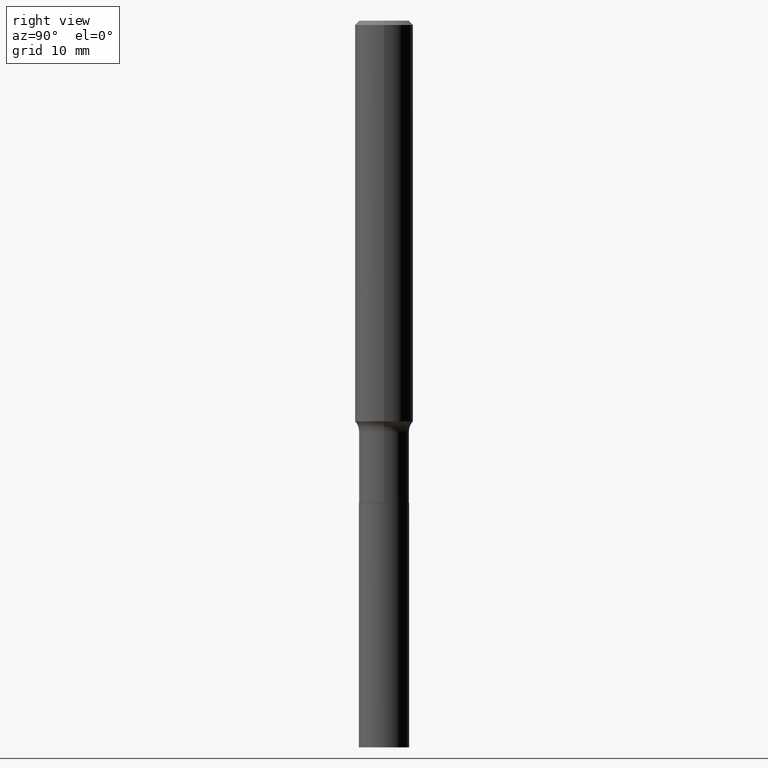
[diagram: clean part render]
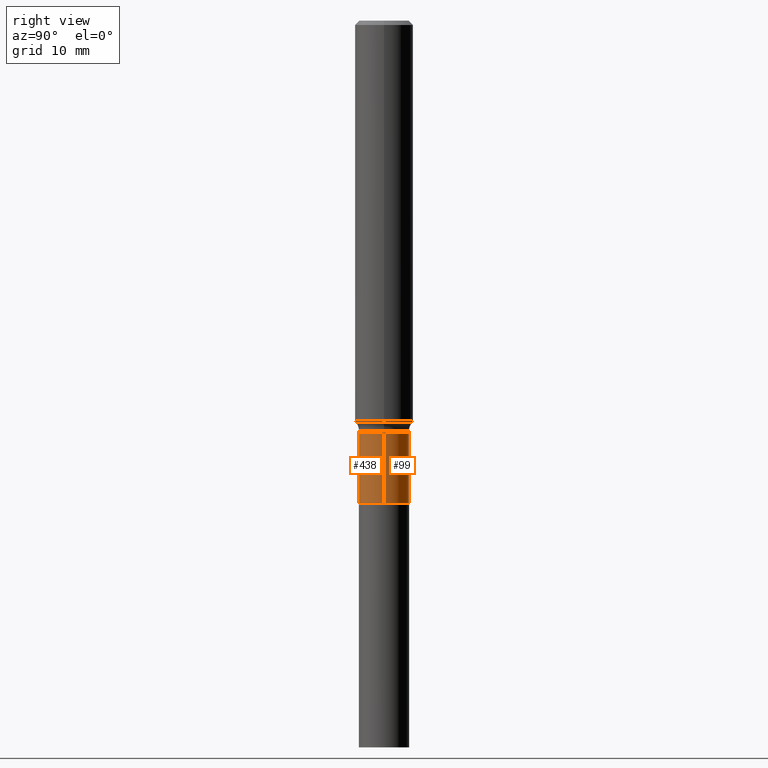
[diagram: same view with one multi-face feature highlighted, each face labeled with its STEP entity id]
A machine part, right view. The highlighted faces form ONE feature: a constant-radius fillet chain: 2 tangent blend faces with common blend radius 3.4544 mm. The faces share edges in the B-rep.
Their STEP definitions:
[1] entity #99 (Cylinder):
#8 = VERTEX_POINT ( 'NONE', #382 ) ;
#17 = CIRCLE ( 'NONE', #357, 0.1360000000000000098 ) ;
#23 = DIRECTION ( 'NONE',  ( -2.445468806185136877E-29, 3.491481338843145188E-15, 1.000000000000000000 ) ) ;
#57 = CARTESIAN_POINT ( 'NONE',  ( 0.000000000000000000, 0.000000000000000000, 0.000000000000000000 ) ) ;
#63 = CARTESIAN_POINT ( 'NONE',  ( 0.1359999999999999543, -9.496829241653320596E-16, 6.631600415082470604E-30 ) ) ;
#80 = EDGE_CURVE ( 'NONE', #285, #210, #456, .T. ) ;
#99 = ADVANCED_FACE ( 'NONE', ( #314 ), #454, .T. ) ;
#106 = EDGE_LOOP ( 'NONE', ( #180, #230, #331, #375 ) ) ;
#130 = DIRECTION ( 'NONE',  ( -2.445468806185136597E-29, 3.491481338843145583E-15, 1.000000000000000000 ) ) ;
#144 = EDGE_CURVE ( 'NONE', #210, #8, #258, .T. ) ;
#160 = AXIS2_PLACEMENT_3D ( 'NONE', #57, #240, #203 ) ;
#166 = CARTESIAN_POINT ( 'NONE',  ( 5.441657187523166048E-29, -7.769244275193768716E-15, -2.225200000000000511 ) ) ;
#180 = ORIENTED_EDGE ( 'NONE', *, *, #212, .T. ) ;
#182 = CARTESIAN_POINT ( 'NONE',  ( -0.1360000000000000098, -7.479031515827007153E-15, -2.612499999999999378 ) ) ;
#203 = DIRECTION ( 'NONE',  ( 1.000000000000000000, -6.982962677686267499E-15, 4.876176775795935793E-29 ) ) ;
#205 = VECTOR ( 'NONE', #23, 39.37007874015748143 ) ;
#208 = DIRECTION ( 'NONE',  ( -2.445468806185136877E-29, 3.491481338843145188E-15, 1.000000000000000000 ) ) ;
#210 = VERTEX_POINT ( 'NONE', #270 ) ;
#212 = EDGE_CURVE ( 'NONE', #285, #261, #17, .T. ) ;
#230 = ORIENTED_EDGE ( 'NONE', *, *, #252, .T. ) ;
#232 = CARTESIAN_POINT ( 'NONE',  ( 6.388787256158668014E-29, -9.121494997727716656E-15, -2.612499999999999378 ) ) ;
#236 = AXIS2_PLACEMENT_3D ( 'NONE', #166, #130, #279 ) ;
#240 = DIRECTION ( 'NONE',  ( -2.445468806185136597E-29, 3.491481338843145583E-15, 1.000000000000000000 ) ) ;
#241 = CARTESIAN_POINT ( 'NONE',  ( -0.1359999999999999543, 9.663381206337359278E-16, -6.689751722746669307E-30 ) ) ;
#252 = EDGE_CURVE ( 'NONE', #261, #8, #351, .T. ) ;
#258 = CIRCLE ( 'NONE', #236, 0.1359999999999999543 ) ;
#261 = VERTEX_POINT ( 'NONE', #182 ) ;
#270 = CARTESIAN_POINT ( 'NONE',  ( 0.1359999999999999543, -8.718927199359099789E-15, -2.225200000000000511 ) ) ;
#279 = DIRECTION ( 'NONE',  ( 1.000000000000000000, -6.982962677686262766E-15, 0.000000000000000000 ) ) ;
#285 = VERTEX_POINT ( 'NONE', #383 ) ;
#305 = DIRECTION ( 'NONE',  ( -2.445468806185136597E-29, 3.491481338843145583E-15, 1.000000000000000000 ) ) ;
#306 = VECTOR ( 'NONE', #208, 39.37007874015748143 ) ;
#314 = FACE_OUTER_BOUND ( 'NONE', #106, .T. ) ;
#331 = ORIENTED_EDGE ( 'NONE', *, *, #144, .F. ) ;
#351 = LINE ( 'NONE', #241, #205 ) ;
#357 = AXIS2_PLACEMENT_3D ( 'NONE', #232, #305, #386 ) ;
#375 = ORIENTED_EDGE ( 'NONE', *, *, #80, .F. ) ;
#382 = CARTESIAN_POINT ( 'NONE',  ( -0.1359999999999999543, -7.479031515827007153E-15, -2.225200000000000511 ) ) ;
#383 = CARTESIAN_POINT ( 'NONE',  ( 0.1360000000000000098, -1.007117792189304773E-14, -2.612499999999999378 ) ) ;
#386 = DIRECTION ( 'NONE',  ( 1.000000000000000000, -6.982962677686260400E-15, 0.000000000000000000 ) ) ;
#454 = CYLINDRICAL_SURFACE ( 'NONE', #160, 0.1359999999999999543 ) ;
#456 = LINE ( 'NONE', #63, #306 ) ;
[2] entity #438 (Cylinder):
#8 = VERTEX_POINT ( 'NONE', #382 ) ;
#16 = CIRCLE ( 'NONE', #311, 0.1359999999999999543 ) ;
#21 = EDGE_CURVE ( 'NONE', #8, #210, #16, .T. ) ;
#22 = CARTESIAN_POINT ( 'NONE',  ( 5.441657187523166048E-29, -7.769244275193768716E-15, -2.225200000000000511 ) ) ;
#23 = DIRECTION ( 'NONE',  ( -2.445468806185136877E-29, 3.491481338843145188E-15, 1.000000000000000000 ) ) ;
#63 = CARTESIAN_POINT ( 'NONE',  ( 0.1359999999999999543, -9.496829241653320596E-16, 6.631600415082470604E-30 ) ) ;
#80 = EDGE_CURVE ( 'NONE', #285, #210, #456, .T. ) ;
#83 = CIRCLE ( 'NONE', #468, 0.1360000000000000098 ) ;
#87 = DIRECTION ( 'NONE',  ( -2.445468806185136597E-29, 3.491481338843145583E-15, 1.000000000000000000 ) ) ;
#104 = DIRECTION ( 'NONE',  ( 1.000000000000000000, -6.982962677686267499E-15, 4.876176775795935793E-29 ) ) ;
#114 = ORIENTED_EDGE ( 'NONE', *, *, #21, .F. ) ;
#116 = DIRECTION ( 'NONE',  ( 1.000000000000000000, -6.982962677686260400E-15, 0.000000000000000000 ) ) ;
#182 = CARTESIAN_POINT ( 'NONE',  ( -0.1360000000000000098, -7.479031515827007153E-15, -2.612499999999999378 ) ) ;
#195 = DIRECTION ( 'NONE',  ( 1.000000000000000000, -6.982962677686262766E-15, 0.000000000000000000 ) ) ;
#205 = VECTOR ( 'NONE', #23, 39.37007874015748143 ) ;
#208 = DIRECTION ( 'NONE',  ( -2.445468806185136877E-29, 3.491481338843145188E-15, 1.000000000000000000 ) ) ;
#210 = VERTEX_POINT ( 'NONE', #270 ) ;
#218 = CYLINDRICAL_SURFACE ( 'NONE', #312, 0.1359999999999999543 ) ;
#235 = DIRECTION ( 'NONE',  ( -2.445468806185136597E-29, 3.491481338843145583E-15, 1.000000000000000000 ) ) ;
#241 = CARTESIAN_POINT ( 'NONE',  ( -0.1359999999999999543, 9.663381206337359278E-16, -6.689751722746669307E-30 ) ) ;
#249 = CARTESIAN_POINT ( 'NONE',  ( 0.000000000000000000, 0.000000000000000000, 0.000000000000000000 ) ) ;
#252 = EDGE_CURVE ( 'NONE', #261, #8, #351, .T. ) ;
#261 = VERTEX_POINT ( 'NONE', #182 ) ;
#270 = CARTESIAN_POINT ( 'NONE',  ( 0.1359999999999999543, -8.718927199359099789E-15, -2.225200000000000511 ) ) ;
#280 = EDGE_CURVE ( 'NONE', #261, #285, #83, .T. ) ;
#285 = VERTEX_POINT ( 'NONE', #383 ) ;
#306 = VECTOR ( 'NONE', #208, 39.37007874015748143 ) ;
#311 = AXIS2_PLACEMENT_3D ( 'NONE', #22, #235, #195 ) ;
#312 = AXIS2_PLACEMENT_3D ( 'NONE', #249, #325, #104 ) ;
#325 = DIRECTION ( 'NONE',  ( -2.445468806185136597E-29, 3.491481338843145583E-15, 1.000000000000000000 ) ) ;
#342 = ORIENTED_EDGE ( 'NONE', *, *, #252, .F. ) ;
#351 = LINE ( 'NONE', #241, #205 ) ;
#382 = CARTESIAN_POINT ( 'NONE',  ( -0.1359999999999999543, -7.479031515827007153E-15, -2.225200000000000511 ) ) ;
#383 = CARTESIAN_POINT ( 'NONE',  ( 0.1360000000000000098, -1.007117792189304773E-14, -2.612499999999999378 ) ) ;
#395 = ORIENTED_EDGE ( 'NONE', *, *, #280, .T. ) ;
#403 = FACE_OUTER_BOUND ( 'NONE', #441, .T. ) ;
#438 = ADVANCED_FACE ( 'NONE', ( #403 ), #218, .T. ) ;
#440 = CARTESIAN_POINT ( 'NONE',  ( 6.388787256158668014E-29, -9.121494997727716656E-15, -2.612499999999999378 ) ) ;
#441 = EDGE_LOOP ( 'NONE', ( #342, #395, #443, #114 ) ) ;
#443 = ORIENTED_EDGE ( 'NONE', *, *, #80, .T. ) ;
#456 = LINE ( 'NONE', #63, #306 ) ;
#468 = AXIS2_PLACEMENT_3D ( 'NONE', #440, #87, #116 ) ;